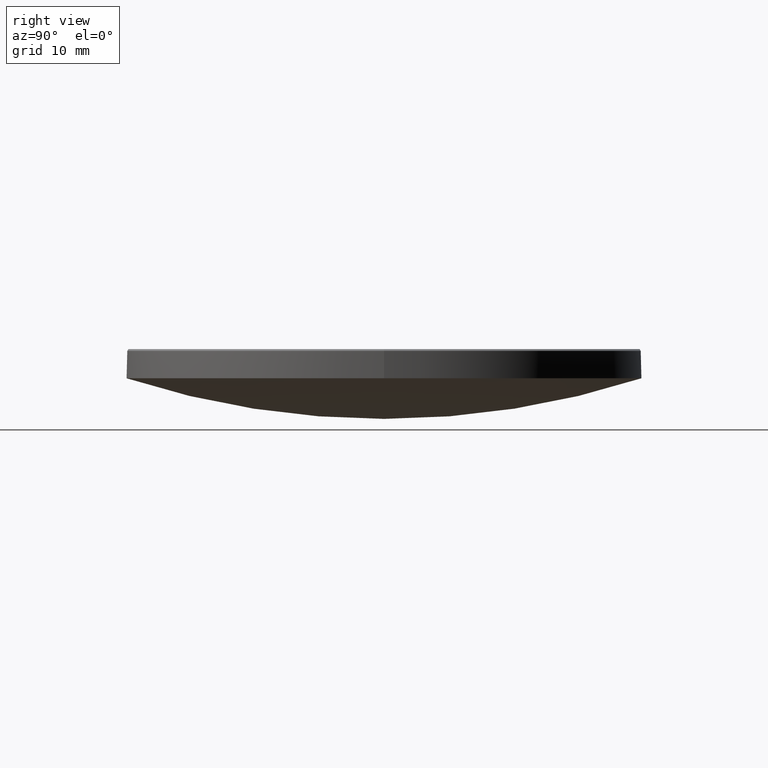
[diagram: clean part render]
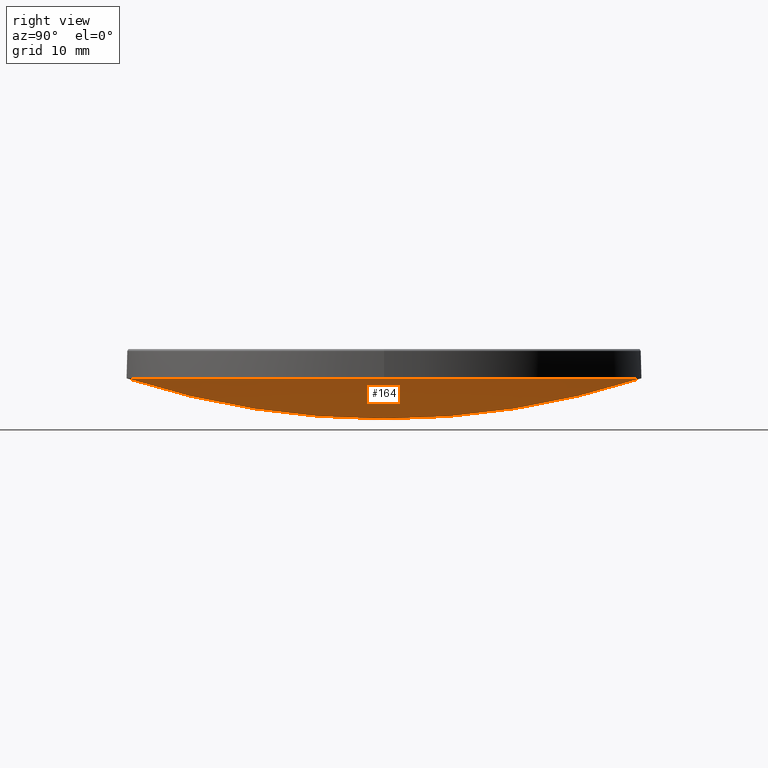
[diagram: same view with one face highlighted and labeled with its STEP entity id]
A machine part, right view. The second image highlights one B-rep face of the part: STEP entity #164.
In plain terms, the highlighted spherical surface has radius 82.54 mm.
Its self-contained STEP definition (entity closure, byte-faithful):
#2 = FACE_OUTER_BOUND ( 'NONE', #19, .T. ) ;
#8 = AXIS2_PLACEMENT_3D ( 'NONE', #143, #102, #11 ) ;
#9 = EDGE_CURVE ( 'NONE', #30, #176, #51, .T. ) ;
#11 = DIRECTION ( 'NONE',  ( -1.224646799147352961E-16, -1.000000000000000000, 0.000000000000000000 ) ) ;
#17 = DIRECTION ( 'NONE',  ( -0.000000000000000000, -0.000000000000000000, 1.000000000000000000 ) ) ;
#19 = EDGE_LOOP ( 'NONE', ( #110, #232, #244, #224 ) ) ;
#30 = VERTEX_POINT ( 'NONE', #94 ) ;
#33 = CARTESIAN_POINT ( 'NONE',  ( 0.000000000000000000, 25.39999999999999147, 12.99999999999999822 ) ) ;
#51 = CIRCLE ( 'NONE', #67, 25.39999999999999503 ) ;
#67 = AXIS2_PLACEMENT_3D ( 'NONE', #205, #136, #88 ) ;
#75 = CARTESIAN_POINT ( 'NONE',  ( 0.000000000000000000, 5.054117340081126317E-15, 8.994652224352527980 ) ) ;
#78 = AXIS2_PLACEMENT_3D ( 'NONE', #273, #190, #167 ) ;
#80 = VERTEX_POINT ( 'NONE', #133 ) ;
#83 = AXIS2_PLACEMENT_3D ( 'NONE', #255, #120, #163 ) ;
#88 = DIRECTION ( 'NONE',  ( 1.000000000000000000, 0.000000000000000000, 0.000000000000000000 ) ) ;
#94 = CARTESIAN_POINT ( 'NONE',  ( 25.39999999999999503, 3.110602869834276471E-15, 13.00000000000000000 ) ) ;
#102 = DIRECTION ( 'NONE',  ( -1.000000000000000000, 1.224646799147353207E-16, 0.000000000000000000 ) ) ;
#109 = CIRCLE ( 'NONE', #8, 82.54000000000000625 ) ;
#110 = ORIENTED_EDGE ( 'NONE', *, *, #187, .F. ) ;
#117 = CIRCLE ( 'NONE', #139, 25.39999999999999503 ) ;
#120 = DIRECTION ( 'NONE',  ( -1.000000000000000000, 0.000000000000000000, 0.000000000000000000 ) ) ;
#133 = CARTESIAN_POINT ( 'NONE',  ( -3.110602869834276076E-15, -25.39999999999999147, 12.99999999999999822 ) ) ;
#136 = DIRECTION ( 'NONE',  ( -0.000000000000000000, -0.000000000000000000, 1.000000000000000000 ) ) ;
#139 = AXIS2_PLACEMENT_3D ( 'NONE', #196, #17, #276 ) ;
#143 = CARTESIAN_POINT ( 'NONE',  ( 0.000000000000000000, 0.000000000000000000, 91.53465222435252713 ) ) ;
#163 = DIRECTION ( 'NONE',  ( 0.000000000000000000, 1.000000000000000000, 0.000000000000000000 ) ) ;
#164 = ADVANCED_FACE ( 'NONE', ( #2 ), #169, .T. ) ;
#167 = DIRECTION ( 'NONE',  ( 0.000000000000000000, 0.000000000000000000, -1.000000000000000000 ) ) ;
#169 = SPHERICAL_SURFACE ( 'NONE', #83, 82.54000000000000625 ) ;
#172 = CIRCLE ( 'NONE', #78, 82.54000000000000625 ) ;
#176 = VERTEX_POINT ( 'NONE', #33 ) ;
#187 = EDGE_CURVE ( 'NONE', #231, #80, #109, .T. ) ;
#190 = DIRECTION ( 'NONE',  ( 1.000000000000000000, -0.000000000000000000, 0.000000000000000000 ) ) ;
#196 = CARTESIAN_POINT ( 'NONE',  ( 0.000000000000000000, 0.000000000000000000, 13.00000000000000000 ) ) ;
#205 = CARTESIAN_POINT ( 'NONE',  ( 0.000000000000000000, 0.000000000000000000, 13.00000000000000000 ) ) ;
#224 = ORIENTED_EDGE ( 'NONE', *, *, #249, .F. ) ;
#231 = VERTEX_POINT ( 'NONE', #75 ) ;
#232 = ORIENTED_EDGE ( 'NONE', *, *, #233, .T. ) ;
#233 = EDGE_CURVE ( 'NONE', #231, #176, #172, .T. ) ;
#244 = ORIENTED_EDGE ( 'NONE', *, *, #9, .F. ) ;
#249 = EDGE_CURVE ( 'NONE', #80, #30, #117, .T. ) ;
#255 = CARTESIAN_POINT ( 'NONE',  ( 0.000000000000000000, 0.000000000000000000, 91.53465222435252713 ) ) ;
#273 = CARTESIAN_POINT ( 'NONE',  ( 0.000000000000000000, 0.000000000000000000, 91.53465222435252713 ) ) ;
#276 = DIRECTION ( 'NONE',  ( 1.000000000000000000, 0.000000000000000000, 0.000000000000000000 ) ) ;